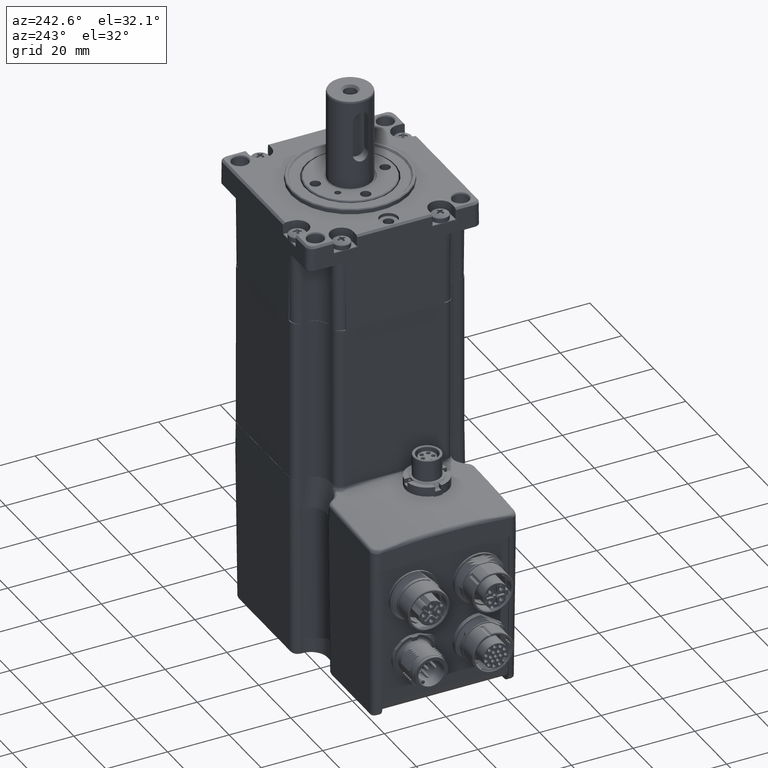
[diagram: clean part render]
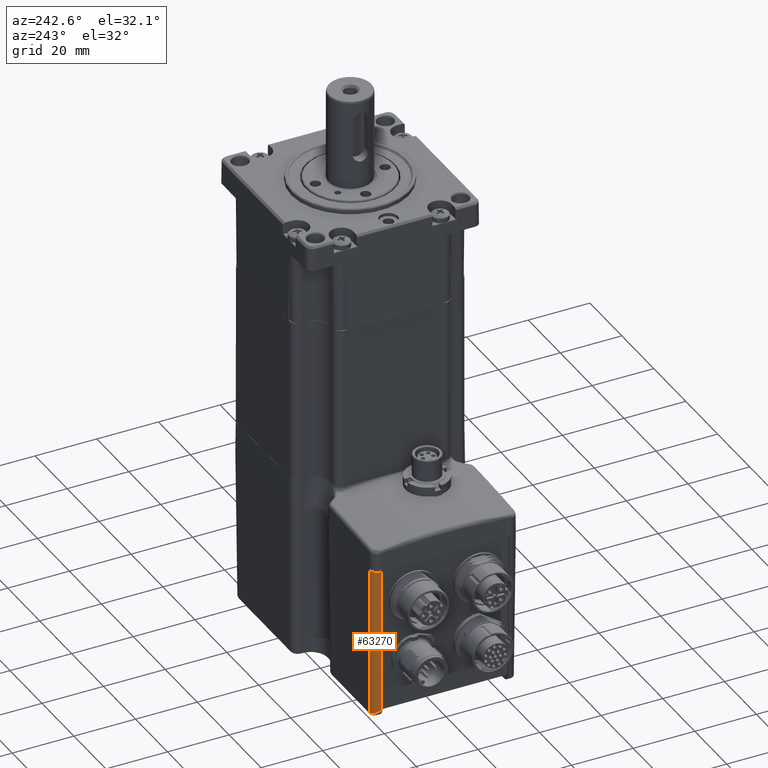
[diagram: same view with one face highlighted and labeled with its STEP entity id]
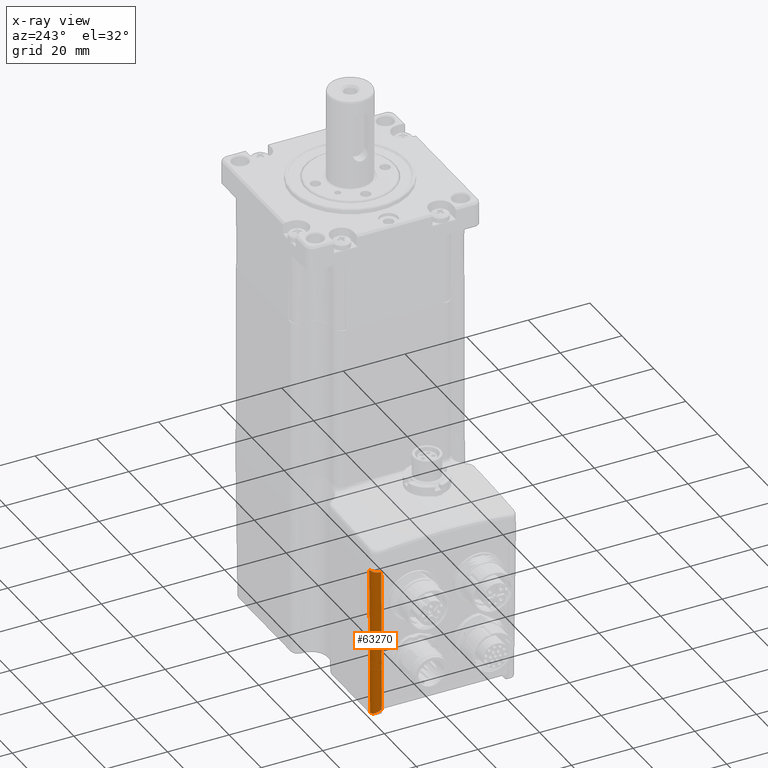
[diagram: x-ray of the same camera — body ghosted, the highlighted face saturated]
A machine part, auxiliary view. The second image highlights one B-rep face of the part: STEP entity #63270.
The next image is the same camera in x-ray: the body ghosted, the highlighted face saturated — about 0% of this face is hidden behind the body in this view.
In plain terms, the highlighted cylindrical surface (edge-blend (fillet) strip) has radius 2.5 mm, axis along (-0.0087, 0.0087, 0.9999).
Its self-contained STEP definition (entity closure, byte-faithful):
#4434 = CARTESIAN_POINT ( 'NONE',  ( -59.37978488577326175, 21.84885336146952284, -100.8506122665749700 ) ) ;
#7169 = EDGE_CURVE ( 'NONE', #16392, #65548, #35902, .T. ) ;
#9763 = ORIENTED_EDGE ( 'NONE', *, *, #7169, .F. ) ;
#14613 = CARTESIAN_POINT ( 'NONE',  ( -57.58736387024715242, 23.58726867790758064, -53.00000000000002842 ) ) ;
#16392 = VERTEX_POINT ( 'NONE', #80101 ) ;
#20486 = CARTESIAN_POINT ( 'NONE',  ( -60.08726867790758064, 22.55179729719361248, -53.00000000004468603 ) ) ;
#20780 = CARTESIAN_POINT ( 'NONE',  ( -57.16018823648161629, 23.16009304414206227, -101.9494792413703692 ) ) ;
#23883 = CARTESIAN_POINT ( 'NONE',  ( -59.67687742577722076, 20.67697261811681031, -100.0261796065398130 ) ) ;
#25767 = CARTESIAN_POINT ( 'NONE',  ( -58.89613092032332275, 22.47720150131094030, -101.3085416279377853 ) ) ;
#25899 = CARTESIAN_POINT ( 'NONE',  ( -60.08745903721663950, 21.08755422955623615, -52.97818698377980695 ) ) ;
#28845 = DIRECTION ( 'NONE',  ( -0.008726203243944236423, 0.008726203243944243362, 0.9999238504775704861 ) ) ;
#30176 = ORIENTED_EDGE ( 'NONE', *, *, #117998, .T. ) ;
#33303 = CARTESIAN_POINT ( 'NONE',  ( -59.44901367648395762, 21.71087797129971264, -100.7525434231754815 ) ) ;
#35902 = LINE ( 'NONE', #25899, #103217 ) ;
#38676 = CARTESIAN_POINT ( 'NONE',  ( -60.08726867790757353, 21.08736387024715242, -53.00000000000002132 ) ) ;
#41426 = VERTEX_POINT ( 'NONE', #14613 ) ;
#42701 = CARTESIAN_POINT ( 'NONE',  ( -59.67596079508702900, 20.82691309866333995, -100.1312150799955987 ) ) ;
#42924 = CYLINDRICAL_SURFACE ( 'NONE', #43917, 2.500000000000000444 ) ;
#43537 = FACE_OUTER_BOUND ( 'NONE', #71419, .T. ) ;
#43910 = CARTESIAN_POINT ( 'NONE',  ( -57.16018823648161629, 23.16009304414206227, -101.9494792413703692 ) ) ;
#43917 = AXIS2_PLACEMENT_3D ( 'NONE', #109385, #90530, #63547 ) ;
#44415 =( BOUNDED_CURVE ( )  B_SPLINE_CURVE ( 3, ( #86283, #75615, #20486, #38676 ),
 .UNSPECIFIED., .F., .T. ) 
 B_SPLINE_CURVE_WITH_KNOTS ( ( 4, 4 ),
 ( 5.497825219993076828, 7.068545394366095636 ),
 .UNSPECIFIED. ) 
 CURVE ( )  GEOMETRIC_REPRESENTATION_ITEM ( )  RATIONAL_B_SPLINE_CURVE ( ( 1.000000000000000000, 0.8047558030806112317, 0.8047558030806112317, 1.000000000000000000 ) ) 
 REPRESENTATION_ITEM ( '' )  );
#44548 = CARTESIAN_POINT ( 'NONE',  ( -57.52250897108043404, 23.14068636353196240, -101.8865826441973041 ) ) ;
#45170 = CARTESIAN_POINT ( 'NONE',  ( -57.34390390829970130, 23.16032717336566193, -101.9226506896830813 ) ) ;
#52096 = CARTESIAN_POINT ( 'NONE',  ( -58.03957203173968793, 23.00917618821629418, -101.7403116263748188 ) ) ;
#54168 = ORIENTED_EDGE ( 'NONE', *, *, #60463, .F. ) ;
#54580 = CARTESIAN_POINT ( 'NONE',  ( -59.60361971819865801, 21.27862953885108865, -100.4477096624811452 ) ) ;
#57635 = LINE ( 'NONE', #114033, #102576 ) ;
#60463 = EDGE_CURVE ( 'NONE', #64312, #41426, #57635, .T. ) ;
#63270 = ADVANCED_FACE ( 'NONE', ( #43537 ), #42924, .T. ) ;
#63547 = DIRECTION ( 'NONE',  ( 0.000000000000000000, 0.9999619230641713097, -0.008726535498373986718 ) ) ;
#63924 = CARTESIAN_POINT ( 'NONE',  ( -59.21281074735841088, 22.11502235441943398, -101.0418659354297972 ) ) ;
#64312 = VERTEX_POINT ( 'NONE', #20780 ) ;
#65548 = VERTEX_POINT ( 'NONE', #91397 ) ;
#68438 = EDGE_CURVE ( 'NONE', #41426, #16392, #44415, .T. ) ;
#71419 = EDGE_LOOP ( 'NONE', ( #54168, #30176, #9763, #97485 ) ) ;
#71483 = CARTESIAN_POINT ( 'NONE',  ( -58.77435086122449093, 22.58540287786488676, -101.3905067625921959 ) ) ;
#75615 = CARTESIAN_POINT ( 'NONE',  ( -59.05179729719360182, 23.58726867790760195, -53.00000000004468603 ) ) ;
#80101 = CARTESIAN_POINT ( 'NONE',  ( -60.08726867790757353, 21.08736387024715242, -53.00000000000002132 ) ) ;
#82092 = CARTESIAN_POINT ( 'NONE',  ( -59.11501714380946026, 22.24265339575267930, -101.1346721086948008 ) ) ;
#86283 = CARTESIAN_POINT ( 'NONE',  ( -57.58736387024715242, 23.58726867790758064, -53.00000000000002842 ) ) ;
#90530 = DIRECTION ( 'NONE',  ( -0.008726203243944234689, 0.008726203243944243362, 0.9999238504775704861 ) ) ;
#90921 = CARTESIAN_POINT ( 'NONE',  ( -59.66109428473156839, 20.97982225497175079, -100.2382078514440593 ) ) ;
#91397 = CARTESIAN_POINT ( 'NONE',  ( -59.67687742577722076, 20.67697261811681031, -100.0261796065398130 ) ) ;
#97485 = ORIENTED_EDGE ( 'NONE', *, *, #68438, .F. ) ;
#102243 = CARTESIAN_POINT ( 'NONE',  ( -59.56089028624109716, 21.42615807800789085, -100.5513623907252168 ) ) ;
#102576 = VECTOR ( 'NONE', #28845, 1000.000000000000114 ) ;
#103217 = VECTOR ( 'NONE', #112355, 1000.000000000000114 ) ;
#109385 = CARTESIAN_POINT ( 'NONE',  ( -57.58533074816302388, 21.08533074816304165, -53.21115637646771290 ) ) ;
#109774 = CARTESIAN_POINT ( 'NONE',  ( -57.87001551823639289, 23.06550543426773103, -101.7956757484130463 ) ) ;
#111620 = CARTESIAN_POINT ( 'NONE',  ( -58.50330707351377413, 22.78103556567728916, -101.5441084425538065 ) ) ;
#112355 = DIRECTION ( 'NONE',  ( 0.008726203243944236423, -0.008726203243944241628, -0.9999238504775704861 ) ) ;
#114033 = CARTESIAN_POINT ( 'NONE',  ( -57.58533074816302388, 23.58523555582346987, -53.23297271521364848 ) ) ;
#114555 = B_SPLINE_CURVE_WITH_KNOTS ( 'NONE', 3,
 ( #43910, #45170, #44548, #109774, #52096, #120949, #111620, #71483, #25767, #82092, #63924, #4434, #33303, #102243, #54580, #90921, #42701, #23883 ),
 .UNSPECIFIED., .F., .F.,
 ( 4, 2, 2, 2, 2, 2, 2, 2, 4 ),
 ( 0.000000000000000000, 0.0005492161527795308288, 0.001098432305559061658, 0.001647648458338592595, 0.002196864611118123315, 0.002746080763897654035, 0.003295296916677185189, 0.003844513069456715910, 0.004393729222236246630 ),
 .UNSPECIFIED. ) ;
#117998 = EDGE_CURVE ( 'NONE', #64312, #65548, #114555, .T. ) ;
#120949 = CARTESIAN_POINT ( 'NONE',  ( -58.35453623914758481, 22.86760047359216230, -101.6151392527948190 ) ) ;